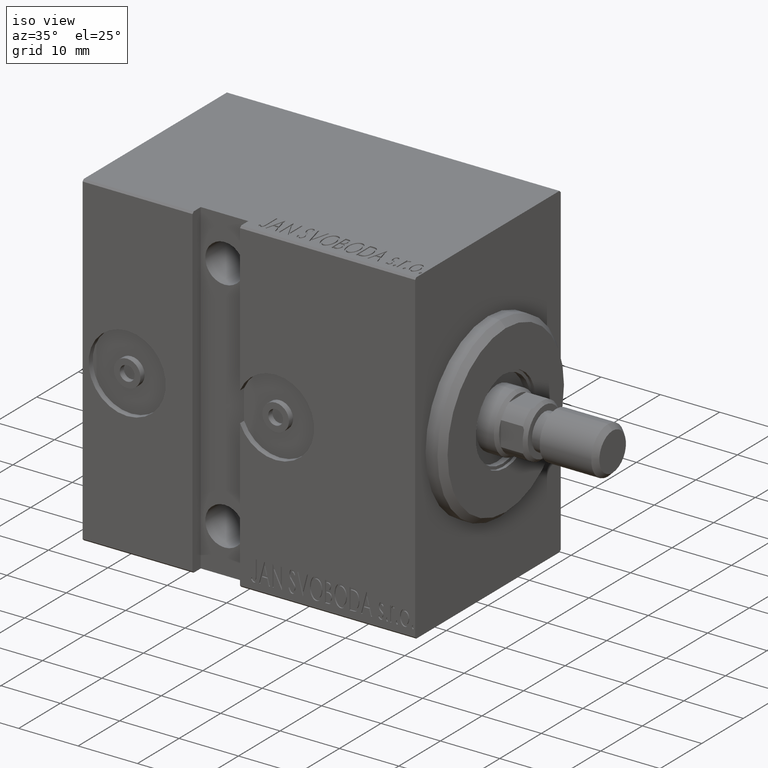
[diagram: clean part render]
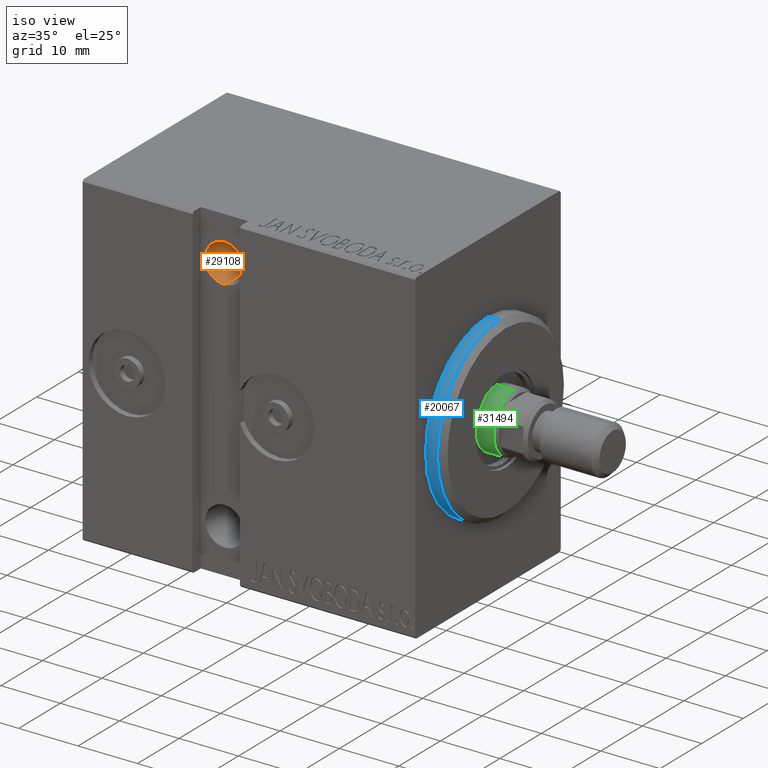
[diagram: same view with three faces highlighted in distinct colors, each labeled with its STEP entity id]
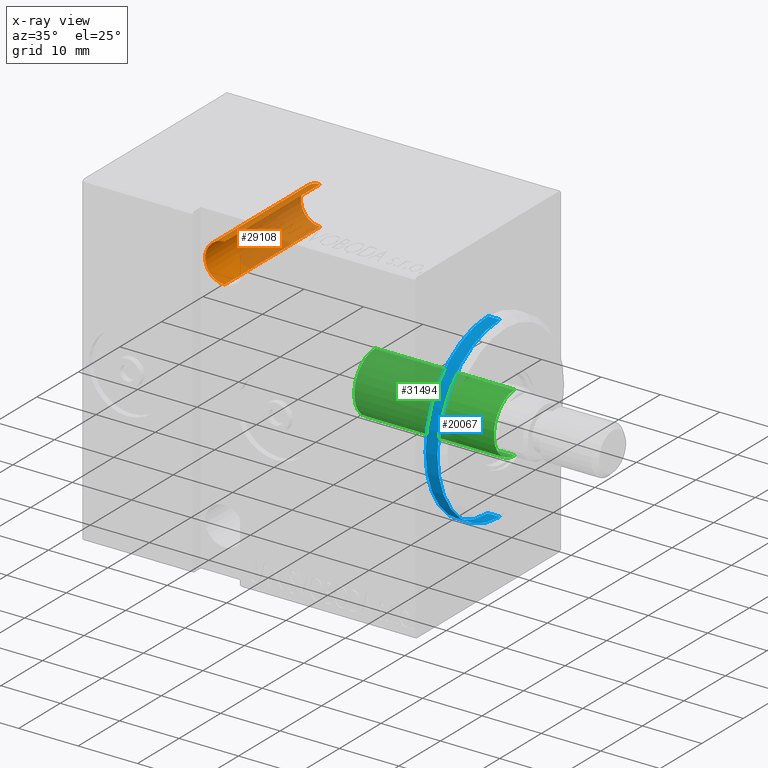
[diagram: x-ray of the same camera — body ghosted, the three highlighted faces saturated]
A machine part, iso view with three faces highlighted in distinct colors.
The next image is the same camera in x-ray (body ghosted, the three faces saturated) — at least one of them is partly hidden behind the body in this view.
Their STEP definitions:

[orange] entity #29108 — the highlighted cylindrical surface (edge-blend (fillet) strip) has radius 3.25 mm, axis along (0, -1, 0).
#480 = CARTESIAN_POINT ( 'NONE',  ( 33.50000000000000000, -17.50000000000001421, 20.00000000000000000 ) ) ;
#1015 = CARTESIAN_POINT ( 'NONE',  ( 33.50000000000000000, 15.50000000000000000, 16.75000000000000000 ) ) ;
#1501 = DIRECTION ( 'NONE',  ( 0.000000000000000000, -1.000000000000000000, 0.000000000000000000 ) ) ;
#3195 = EDGE_CURVE ( 'NONE', #33503, #27709, #39235, .T. ) ;
#5028 = ORIENTED_EDGE ( 'NONE', *, *, #32918, .F. ) ;
#5777 = DIRECTION ( 'NONE',  ( 0.000000000000000000, -2.668805347656626678E-16, -1.000000000000000000 ) ) ;
#7509 = AXIS2_PLACEMENT_3D ( 'NONE', #480, #20015, #36937 ) ;
#8952 = CARTESIAN_POINT ( 'NONE',  ( 33.50000000000000000, -7.499999999999995559, 16.75000000000000000 ) ) ;
#11224 = ORIENTED_EDGE ( 'NONE', *, *, #3195, .F. ) ;
#12577 = CARTESIAN_POINT ( 'NONE',  ( 33.50000000000000000, -7.499999999999994671, 20.00000000000000000 ) ) ;
#13791 = ORIENTED_EDGE ( 'NONE', *, *, #25376, .T. ) ;
#16692 = CIRCLE ( 'NONE', #27911, 3.249999999999999556 ) ;
#17171 = CYLINDRICAL_SURFACE ( 'NONE', #7509, 3.249999999999999556 ) ;
#20015 = DIRECTION ( 'NONE',  ( -0.000000000000000000, 1.000000000000000000, -0.000000000000000000 ) ) ;
#21384 = VERTEX_POINT ( 'NONE', #37979 ) ;
#22699 = EDGE_LOOP ( 'NONE', ( #41042, #5028, #13791, #11224 ) ) ;
#22810 = CARTESIAN_POINT ( 'NONE',  ( 33.50000000000000000, -17.50000000000001421, 16.75000000000000000 ) ) ;
#23971 = FACE_OUTER_BOUND ( 'NONE', #22699, .T. ) ;
#25376 = EDGE_CURVE ( 'NONE', #21384, #27709, #25410, .T. ) ;
#25410 = LINE ( 'NONE', #41236, #32680 ) ;
#25959 = EDGE_CURVE ( 'NONE', #37822, #33503, #32933, .T. ) ;
#26549 = DIRECTION ( 'NONE',  ( -0.000000000000000000, 1.000000000000000000, -0.000000000000000000 ) ) ;
#27709 = VERTEX_POINT ( 'NONE', #28580 ) ;
#27911 = AXIS2_PLACEMENT_3D ( 'NONE', #12577, #35869, #5777 ) ;
#28059 = DIRECTION ( 'NONE',  ( -0.000000000000000000, 1.000000000000000000, -0.000000000000000000 ) ) ;
#28580 = CARTESIAN_POINT ( 'NONE',  ( 33.50000000000000000, 15.50000000000000000, 23.25000000000000000 ) ) ;
#28695 = AXIS2_PLACEMENT_3D ( 'NONE', #41682, #1501, #38169 ) ;
#29108 = ADVANCED_FACE ( 'NONE', ( #23971 ), #17171, .F. ) ;
#32680 = VECTOR ( 'NONE', #28059, 1000.000000000000000 ) ;
#32918 = EDGE_CURVE ( 'NONE', #21384, #37822, #16692, .T. ) ;
#32933 = LINE ( 'NONE', #22810, #34778 ) ;
#33503 = VERTEX_POINT ( 'NONE', #1015 ) ;
#34778 = VECTOR ( 'NONE', #26549, 1000.000000000000000 ) ;
#35869 = DIRECTION ( 'NONE',  ( -0.000000000000000000, 1.000000000000000000, -1.963837897332234442E-16 ) ) ;
#36937 = DIRECTION ( 'NONE',  ( 0.000000000000000000, 0.000000000000000000, 1.000000000000000000 ) ) ;
#37822 = VERTEX_POINT ( 'NONE', #8952 ) ;
#37979 = CARTESIAN_POINT ( 'NONE',  ( 33.50000000000000000, -7.499999999999993783, 23.25000000000000000 ) ) ;
#38169 = DIRECTION ( 'NONE',  ( 0.000000000000000000, 0.000000000000000000, -1.000000000000000000 ) ) ;
#39235 = CIRCLE ( 'NONE', #28695, 3.249999999999999556 ) ;
#41042 = ORIENTED_EDGE ( 'NONE', *, *, #25959, .F. ) ;
#41236 = CARTESIAN_POINT ( 'NONE',  ( 33.50000000000000000, -17.50000000000001421, 23.25000000000000000 ) ) ;
#41682 = CARTESIAN_POINT ( 'NONE',  ( 33.50000000000000000, 15.50000000000000000, 20.00000000000000000 ) ) ;

[blue] entity #20067 — the highlighted cylindrical surface (partial cylindrical patch) has radius 15 mm, axis along (-1, -0, -0).
#414 = DIRECTION ( 'NONE',  ( 0.000000000000000000, 0.000000000000000000, -1.000000000000000000 ) ) ;
#632 = CARTESIAN_POINT ( 'NONE',  ( 0.000000000000000000, 0.000000000000000000, 0.000000000000000000 ) ) ;
#1402 = ORIENTED_EDGE ( 'NONE', *, *, #37480, .T. ) ;
#1430 = ORIENTED_EDGE ( 'NONE', *, *, #6029, .T. ) ;
#2822 = CIRCLE ( 'NONE', #22449, 15.00000000000000000 ) ;
#3870 = VERTEX_POINT ( 'NONE', #25917 ) ;
#6029 = EDGE_CURVE ( 'NONE', #3870, #33078, #2822, .T. ) ;
#6176 = VECTOR ( 'NONE', #10293, 1000.000000000000000 ) ;
#10112 = DIRECTION ( 'NONE',  ( 0.000000000000000000, 0.000000000000000000, 1.000000000000000000 ) ) ;
#10293 = DIRECTION ( 'NONE',  ( -1.000000000000000000, -0.000000000000000000, -0.000000000000000000 ) ) ;
#10750 = EDGE_LOOP ( 'NONE', ( #15929, #1402, #15348, #1430 ) ) ;
#10946 = VERTEX_POINT ( 'NONE', #23287 ) ;
#11601 = CARTESIAN_POINT ( 'NONE',  ( 3.000000000000000000, 1.836970198721029589E-15, -15.00000000000000000 ) ) ;
#14029 = DIRECTION ( 'NONE',  ( 1.000000000000000000, -0.000000000000000000, 0.000000000000000000 ) ) ;
#14917 = LINE ( 'NONE', #11601, #35572 ) ;
#15348 = ORIENTED_EDGE ( 'NONE', *, *, #32385, .T. ) ;
#15929 = ORIENTED_EDGE ( 'NONE', *, *, #30390, .F. ) ;
#19324 = CARTESIAN_POINT ( 'NONE',  ( 0.000000000000000000, 1.836970198721029589E-15, -15.00000000000000000 ) ) ;
#20067 = ADVANCED_FACE ( 'NONE', ( #30106 ), #26366, .T. ) ;
#20605 = CARTESIAN_POINT ( 'NONE',  ( 1.999999999999988676, 0.000000000000000000, 0.000000000000000000 ) ) ;
#22105 = AXIS2_PLACEMENT_3D ( 'NONE', #39347, #26805, #10112 ) ;
#22449 = AXIS2_PLACEMENT_3D ( 'NONE', #632, #14029, #33355 ) ;
#23287 = CARTESIAN_POINT ( 'NONE',  ( 1.999999999999988676, 1.836970198721029589E-15, -15.00000000000000000 ) ) ;
#24335 = DIRECTION ( 'NONE',  ( -1.000000000000000000, 0.000000000000000000, 0.000000000000000000 ) ) ;
#25917 = CARTESIAN_POINT ( 'NONE',  ( 0.000000000000000000, 0.000000000000000000, 15.00000000000000000 ) ) ;
#26366 = CYLINDRICAL_SURFACE ( 'NONE', #22105, 15.00000000000000000 ) ;
#26805 = DIRECTION ( 'NONE',  ( -1.000000000000000000, -0.000000000000000000, -0.000000000000000000 ) ) ;
#30106 = FACE_OUTER_BOUND ( 'NONE', #10750, .T. ) ;
#30138 = AXIS2_PLACEMENT_3D ( 'NONE', #20605, #24335, #414 ) ;
#30390 = EDGE_CURVE ( 'NONE', #10946, #33078, #14917, .T. ) ;
#30857 = VERTEX_POINT ( 'NONE', #38788 ) ;
#32385 = EDGE_CURVE ( 'NONE', #30857, #3870, #40383, .T. ) ;
#33078 = VERTEX_POINT ( 'NONE', #19324 ) ;
#33355 = DIRECTION ( 'NONE',  ( 0.000000000000000000, 0.000000000000000000, -1.000000000000000000 ) ) ;
#35572 = VECTOR ( 'NONE', #42351, 1000.000000000000000 ) ;
#36225 = CARTESIAN_POINT ( 'NONE',  ( 3.000000000000000000, 0.000000000000000000, 15.00000000000000000 ) ) ;
#36467 = CIRCLE ( 'NONE', #30138, 15.00000000000000000 ) ;
#37480 = EDGE_CURVE ( 'NONE', #10946, #30857, #36467, .T. ) ;
#38788 = CARTESIAN_POINT ( 'NONE',  ( 1.999999999999988676, 0.000000000000000000, 15.00000000000000000 ) ) ;
#39347 = CARTESIAN_POINT ( 'NONE',  ( 3.000000000000000000, 0.000000000000000000, 0.000000000000000000 ) ) ;
#40383 = LINE ( 'NONE', #36225, #6176 ) ;
#42351 = DIRECTION ( 'NONE',  ( -1.000000000000000000, -0.000000000000000000, -0.000000000000000000 ) ) ;

[green] entity #31494 — the highlighted cylindrical surface (edge-blend (fillet) strip) has radius 5 mm, axis along (-1, -0, 0).
#2705 = VERTEX_POINT ( 'NONE', #18072 ) ;
#4731 = AXIS2_PLACEMENT_3D ( 'NONE', #12756, #25930, #32956 ) ;
#5699 = ORIENTED_EDGE ( 'NONE', *, *, #10263, .T. ) ;
#5723 = AXIS2_PLACEMENT_3D ( 'NONE', #9884, #39539, #23270 ) ;
#5758 = EDGE_CURVE ( 'NONE', #18450, #2705, #15452, .T. ) ;
#5946 = FACE_OUTER_BOUND ( 'NONE', #33564, .T. ) ;
#6330 = AXIS2_PLACEMENT_3D ( 'NONE', #34069, #37573, #10984 ) ;
#9400 = CARTESIAN_POINT ( 'NONE',  ( -5.000000000000000000, 0.000000000000000000, 32.00000000000000000 ) ) ;
#9553 = EDGE_CURVE ( 'NONE', #22271, #38379, #29472, .T. ) ;
#9884 = CARTESIAN_POINT ( 'NONE',  ( 0.000000000000000000, 0.000000000000000000, 32.00000000000000000 ) ) ;
#10263 = EDGE_CURVE ( 'NONE', #2705, #22271, #35941, .T. ) ;
#10984 = DIRECTION ( 'NONE',  ( 1.000000000000000000, 0.000000000000000000, 0.000000000000000000 ) ) ;
#12756 = CARTESIAN_POINT ( 'NONE',  ( 0.000000000000000000, 0.000000000000000000, 56.00000000000000000 ) ) ;
#12775 = ORIENTED_EDGE ( 'NONE', *, *, #5758, .T. ) ;
#12866 = DIRECTION ( 'NONE',  ( -0.000000000000000000, -0.000000000000000000, -1.000000000000000000 ) ) ;
#13409 = CYLINDRICAL_SURFACE ( 'NONE', #4731, 5.000000000000000000 ) ;
#13927 = LINE ( 'NONE', #17223, #28029 ) ;
#13957 = ORIENTED_EDGE ( 'NONE', *, *, #9553, .T. ) ;
#15452 = CIRCLE ( 'NONE', #6330, 5.000000000000000000 ) ;
#16567 = DIRECTION ( 'NONE',  ( -0.000000000000000000, -0.000000000000000000, -1.000000000000000000 ) ) ;
#17223 = CARTESIAN_POINT ( 'NONE',  ( 5.000000000000000000, 6.123233995736766282E-16, 56.00000000000000000 ) ) ;
#18072 = CARTESIAN_POINT ( 'NONE',  ( -5.000000000000000000, 0.000000000000000000, 55.50000000000001421 ) ) ;
#18450 = VERTEX_POINT ( 'NONE', #25069 ) ;
#22271 = VERTEX_POINT ( 'NONE', #9400 ) ;
#22314 = CARTESIAN_POINT ( 'NONE',  ( -5.000000000000000000, 0.000000000000000000, 56.00000000000000000 ) ) ;
#23270 = DIRECTION ( 'NONE',  ( 1.000000000000000000, 0.000000000000000000, 0.000000000000000000 ) ) ;
#25062 = ORIENTED_EDGE ( 'NONE', *, *, #38235, .F. ) ;
#25069 = CARTESIAN_POINT ( 'NONE',  ( 5.000000000000000000, 6.123233995736766282E-16, 55.50000000000001421 ) ) ;
#25930 = DIRECTION ( 'NONE',  ( -0.000000000000000000, -0.000000000000000000, -1.000000000000000000 ) ) ;
#28029 = VECTOR ( 'NONE', #16567, 1000.000000000000000 ) ;
#29472 = CIRCLE ( 'NONE', #5723, 5.000000000000000000 ) ;
#31494 = ADVANCED_FACE ( 'NONE', ( #5946 ), #13409, .T. ) ;
#32956 = DIRECTION ( 'NONE',  ( -1.000000000000000000, 0.000000000000000000, 0.000000000000000000 ) ) ;
#33564 = EDGE_LOOP ( 'NONE', ( #25062, #12775, #5699, #13957 ) ) ;
#34069 = CARTESIAN_POINT ( 'NONE',  ( 0.000000000000000000, 0.000000000000000000, 55.50000000000001421 ) ) ;
#35091 = VECTOR ( 'NONE', #12866, 1000.000000000000000 ) ;
#35941 = LINE ( 'NONE', #22314, #35091 ) ;
#37573 = DIRECTION ( 'NONE',  ( 0.000000000000000000, 0.000000000000000000, -1.000000000000000000 ) ) ;
#38235 = EDGE_CURVE ( 'NONE', #18450, #38379, #13927, .T. ) ;
#38379 = VERTEX_POINT ( 'NONE', #39375 ) ;
#39375 = CARTESIAN_POINT ( 'NONE',  ( 5.000000000000000000, 6.123233995736766282E-16, 32.00000000000000000 ) ) ;
#39539 = DIRECTION ( 'NONE',  ( 0.000000000000000000, 0.000000000000000000, 1.000000000000000000 ) ) ;